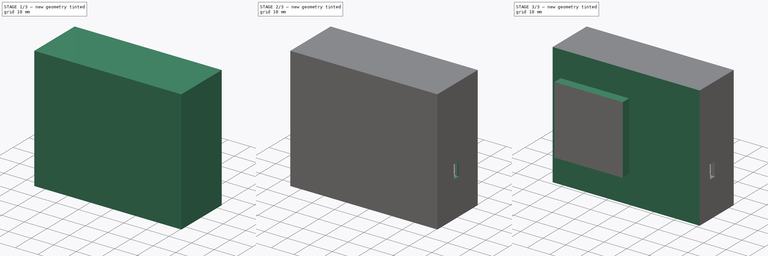
[diagram: build sequence overview — one tinted view per stage of 3, left to right]
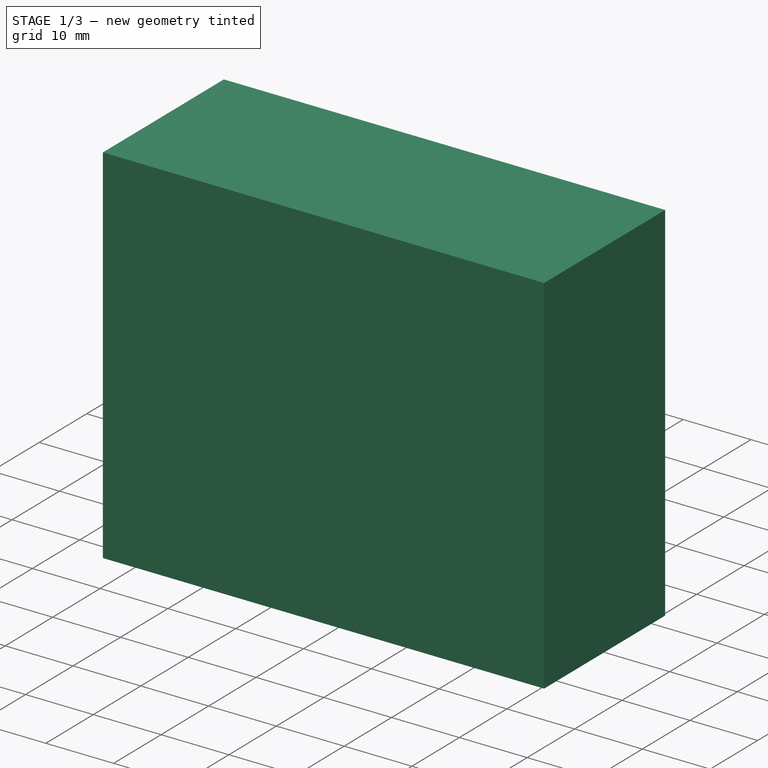
[diagram: stage 1 of 3 — iso view after this stage's code; geometry added in this stage tinted green]
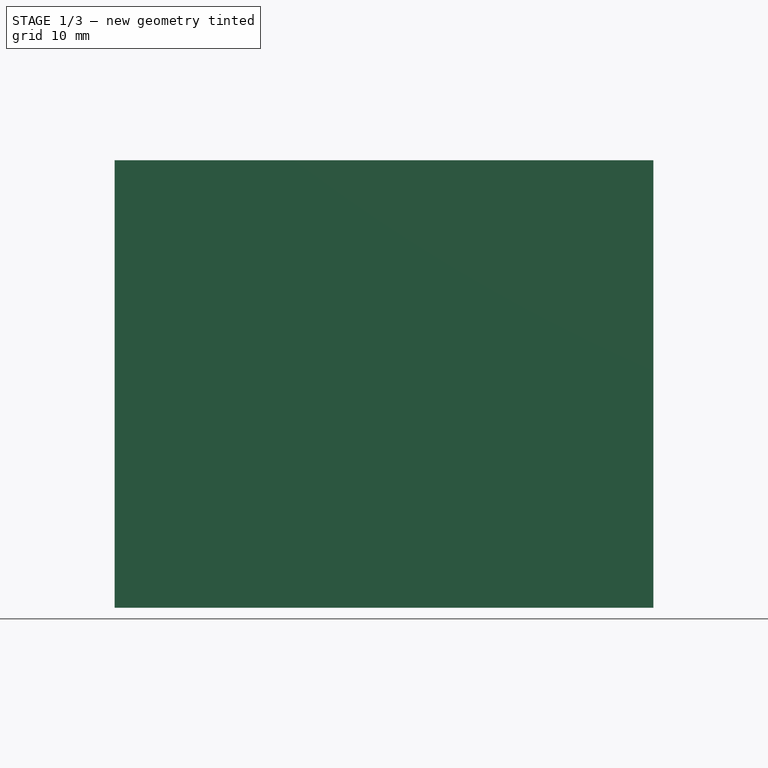
[diagram: stage 1 of 3 — front view after this stage's code; geometry added in this stage tinted green]
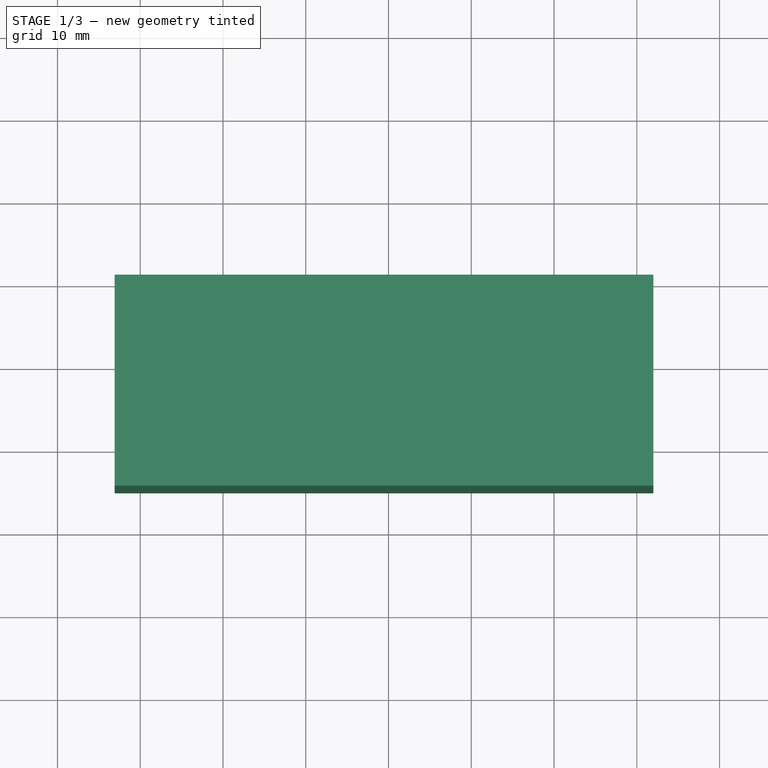
[diagram: stage 1 of 3 — top view after this stage's code; geometry added in this stage tinted green]
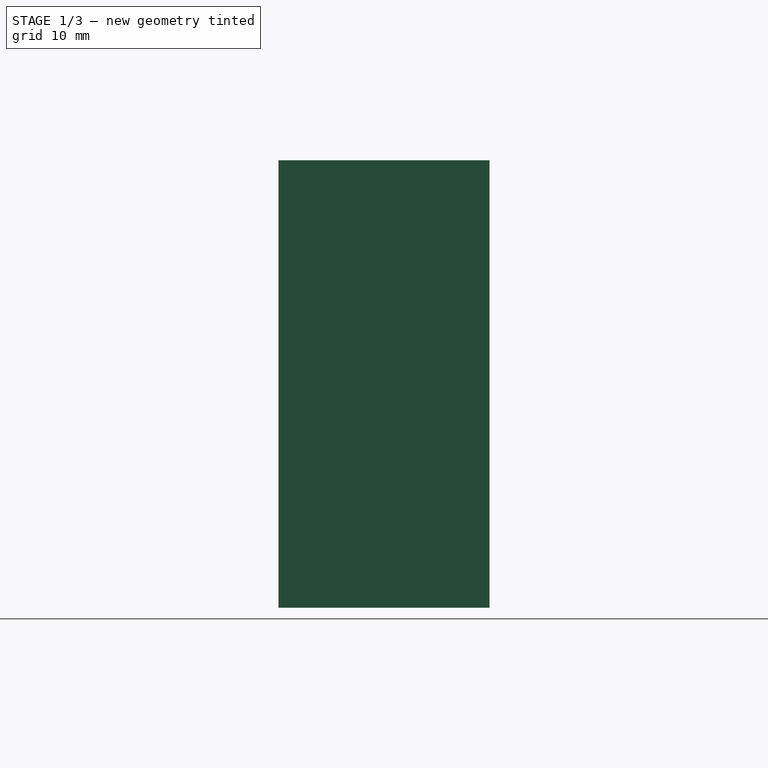
[diagram: stage 1 of 3 — right view after this stage's code; geometry added in this stage tinted green]
FCSTD DOCUMENT  (FreeCAD 0.18.1R)
Label: enclousure
License: All rights reserved
LicenseURL: http://en.wikipedia.org/wiki/All_rights_reserved
objects: Sketcher::SketchObject×3, PartDesign::Pocket×3, Part::Feature×1, PartDesign::FeatureBase×1, PartDesign::Fillet×1, PartDesign::Body×1
note: 13 computed .brp shape members not serialized (recipe doc carries the construction recipe); baked Part::Feature solids carry a one-line shape summary decoded from their .brp

FEATURE [Part::Feature] Part__Feature  label="Body"
  shape: bbox 65.1 x 25.5 x 54.08 mm, 185 faces (baked)
FEATURE [PartDesign::FeatureBase] Clone
  BaseFeature = -> Part__Feature
FEATURE [Sketcher::SketchObject] Sketch
  ExternalGeometry = -> [Clone]
  MapMode = 5
  Placement = pos=(0,10.5,-7e-15) rot=(0,0.707107,0.707107;3.14159rad)
  Support = -> [Clone]
  sketch-geometry (4):
    g0: LineSegment StartX=0 StartY=50.0814 StartZ=0 EndX=61.0961 EndY=50.0814 EndZ=0
    g1: LineSegment StartX=61.0961 StartY=50.0814 StartZ=0 EndX=61.0961 EndY=7.1e-15 EndZ=0
    g2: LineSegment StartX=61.0961 StartY=7.1e-15 StartZ=0 EndX=0 EndY=7.1e-15 EndZ=0
    g3: LineSegment StartX=0 StartY=7.1e-15 StartZ=0 EndX=0 EndY=50.0814 EndZ=0
  constraints (12):
    c: Coincident(g0,g1)
    c: Coincident(g1,g2)
    c: Coincident(g2,g3)
    c: Coincident(g3,g0)
    c: Horizontal(g0)
    c: Horizontal(g2)
    c: Vertical(g1)
    c: Vertical(g3)
    c: DistanceY(g0,g-6) = 2
    c: DistanceY(g-6,g1) = 2
    c: DistanceX(g1,g-6) = 2
    c: DistanceX(g-5,g2) = 2
FEATURE [PartDesign::Pocket] Pocket
  BaseFeature = -> Clone
  Length = 20
  Length2 = 100
  Profile = -> Sketch
  Type = 0
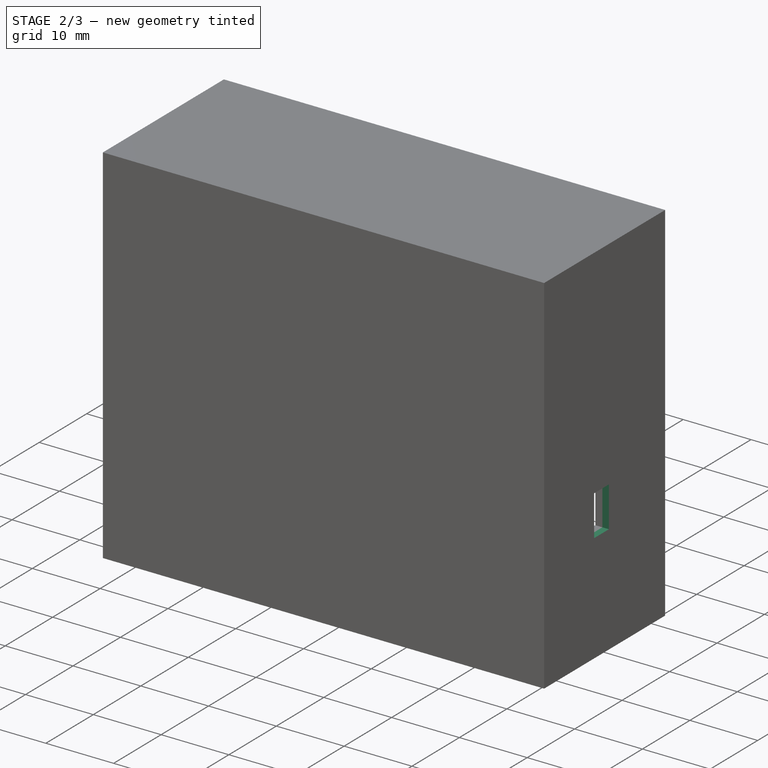
[diagram: stage 2 of 3 — iso view after this stage's code; geometry added in this stage tinted green]
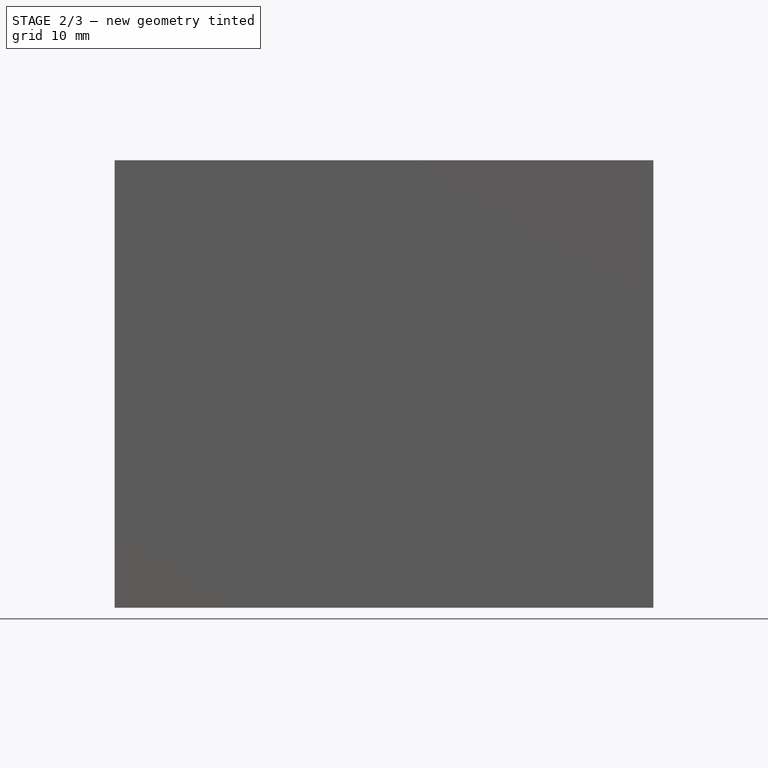
[diagram: stage 2 of 3 — front view after this stage's code; geometry added in this stage tinted green]
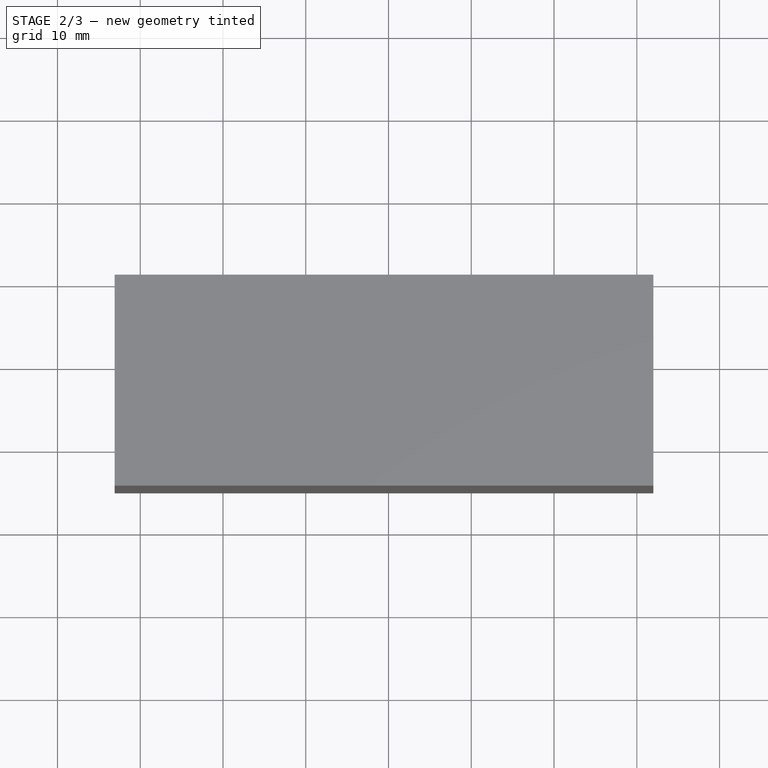
[diagram: stage 2 of 3 — top view after this stage's code; geometry added in this stage tinted green]
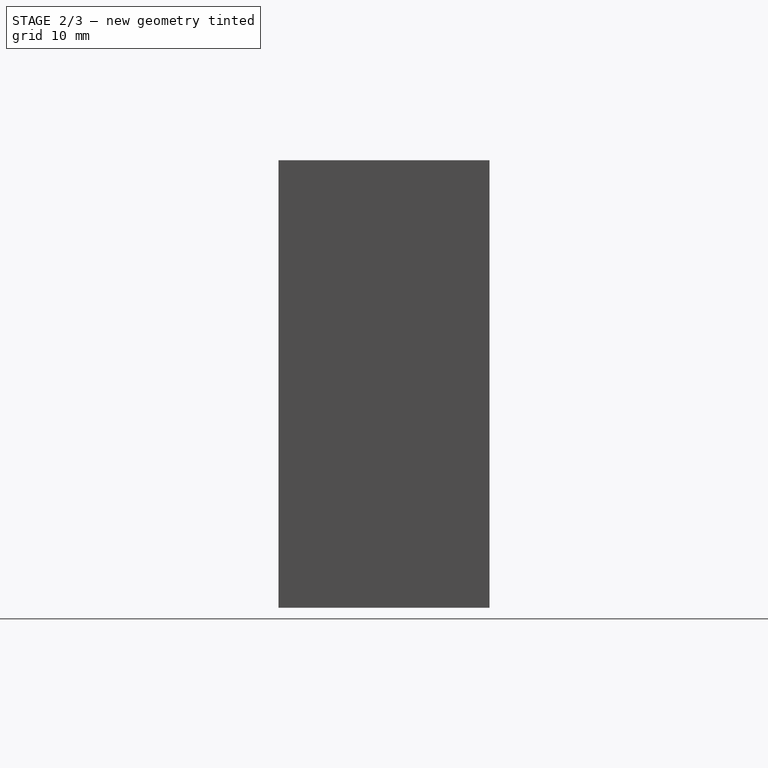
[diagram: stage 2 of 3 — right view after this stage's code; geometry added in this stage tinted green]
FEATURE [Sketcher::SketchObject] Sketch001
  ExternalGeometry = -> [Pocket]
  MapMode = 5
  Placement = pos=(1.3,0,0) rot=(0.57735,-0.57735,-0.57735;2.0944rad)
  Support = -> [Pocket]
  sketch-geometry (4):
    g0: LineSegment StartX=1.352 StartY=20.02 StartZ=0 EndX=4.472 EndY=20.02 EndZ=0
    g1: LineSegment StartX=4.472 StartY=20.02 StartZ=0 EndX=4.472 EndY=14.04 EndZ=0
    g2: LineSegment StartX=4.472 StartY=14.04 StartZ=0 EndX=1.352 EndY=14.04 EndZ=0
    g3: LineSegment StartX=1.352 StartY=14.04 StartZ=0 EndX=1.352 EndY=20.02 EndZ=0
  constraints (8):
    c: Coincident(g0,g1)
    c: Coincident(g1,g2)
    c: Coincident(g2,g3)
    c: Coincident(g3,g0)
    c: Horizontal(g0)
    c: Horizontal(g2)
    c: Vertical(g1)
    c: Vertical(g3)
FEATURE [PartDesign::Pocket] Pocket001
  BaseFeature = -> Pocket
  Length = 7
  Length2 = 5
  Profile = -> Sketch001
  Type = 4
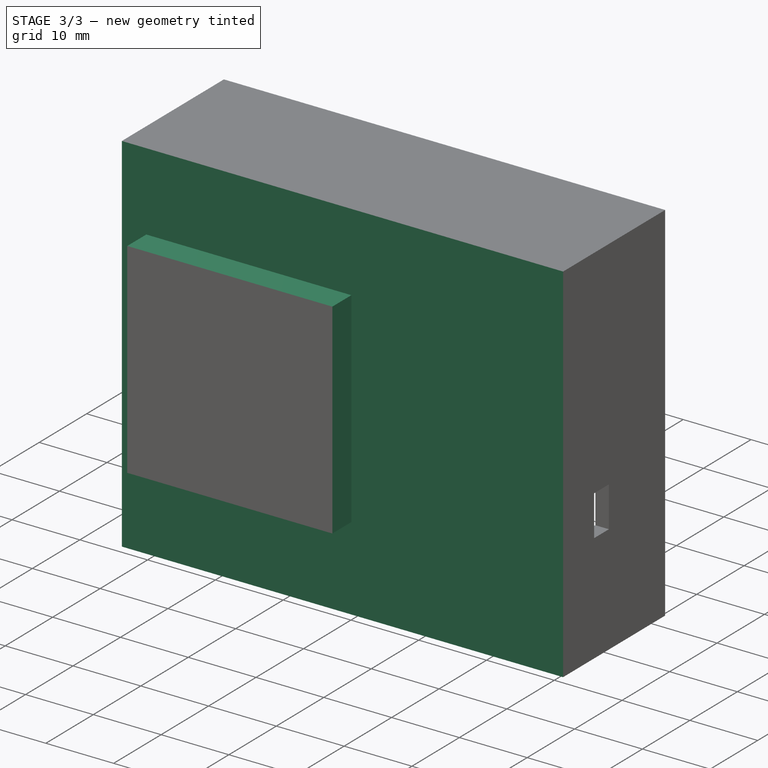
[diagram: stage 3 of 3 — iso view after this stage's code; geometry added in this stage tinted green]
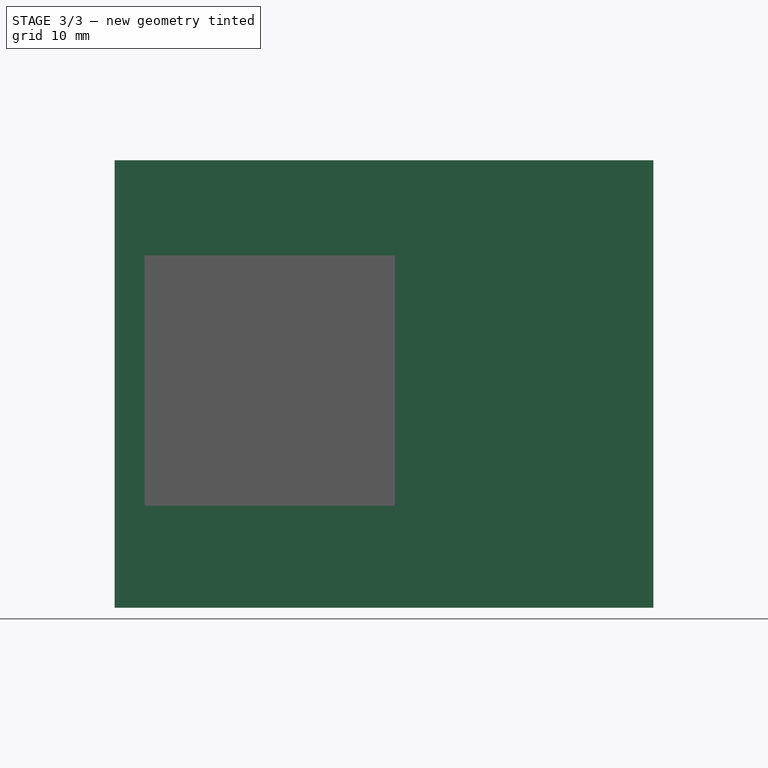
[diagram: stage 3 of 3 — front view after this stage's code; geometry added in this stage tinted green]
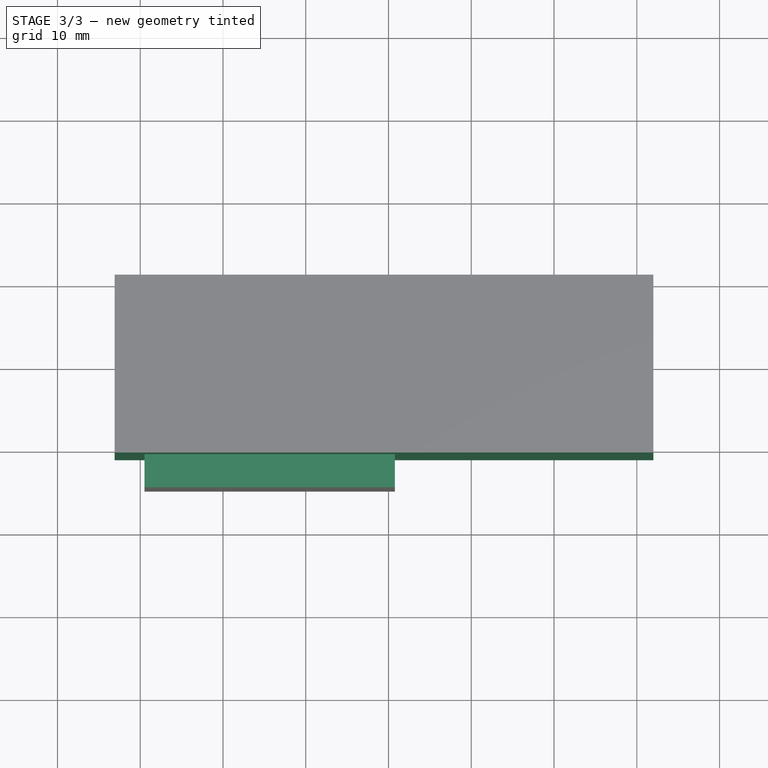
[diagram: stage 3 of 3 — top view after this stage's code; geometry added in this stage tinted green]
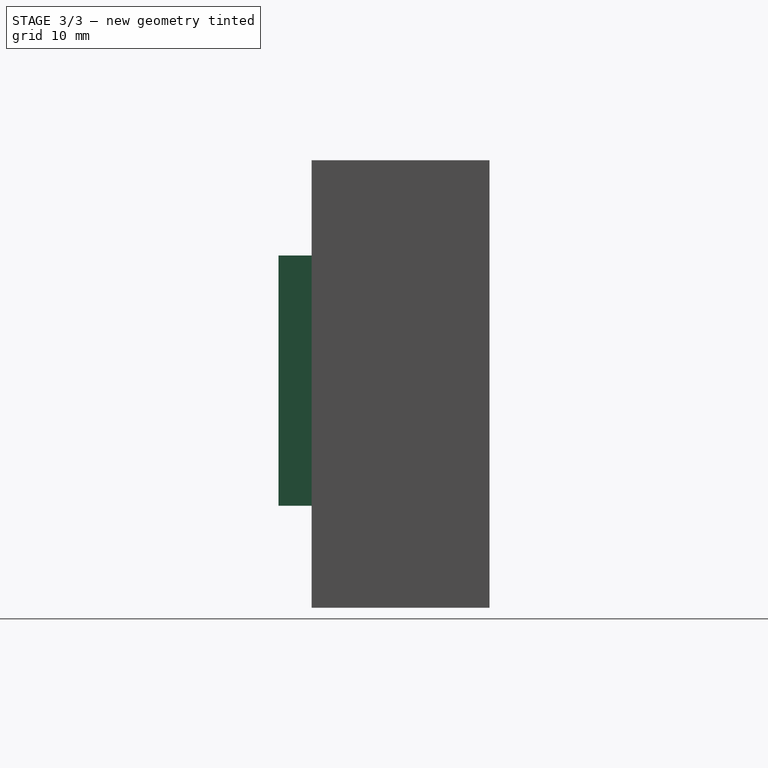
[diagram: stage 3 of 3 — right view after this stage's code; geometry added in this stage tinted green]
FEATURE [Sketcher::SketchObject] Sketch002
  ExternalGeometry = -> [Pocket001]
  MapMode = 5
  Placement = pos=(0,-15,1e-14) rot=(1,0,0;1.5708rad)
  Support = -> [Pocket001]
  sketch-geometry (8):
    g0: LineSegment StartX=-59.491 StartY=40.5761 StartZ=0 EndX=-29.241 EndY=40.5761 EndZ=0
    g1: LineSegment StartX=-29.241 StartY=40.5761 StartZ=0 EndX=-29.241 EndY=10.3261 EndZ=0
    g2: LineSegment StartX=-29.241 StartY=10.3261 StartZ=0 EndX=-59.491 EndY=10.3261 EndZ=0
    g3: LineSegment StartX=-59.491 StartY=10.3261 StartZ=0 EndX=-59.491 EndY=40.5761 EndZ=0
    g4: LineSegment StartX=-70.2575 StartY=57.5357 StartZ=0 EndX=6.27559 EndY=57.5357 EndZ=0
    g5: LineSegment StartX=6.27559 StartY=57.5357 StartZ=0 EndX=6.27559 EndY=-4.64054 EndZ=0
    g6: LineSegment StartX=6.27559 StartY=-4.64054 StartZ=0 EndX=-70.2575 EndY=-4.64054 EndZ=0
    g7: LineSegment StartX=-70.2575 StartY=-4.64054 StartZ=0 EndX=-70.2575 EndY=57.5357 EndZ=0
  constraints (20):
    c: Coincident(g0,g1)
    c: Coincident(g1,g2)
    c: Coincident(g2,g3)
    c: Coincident(g3,g0)
    c: Horizontal(g0)
    c: Horizontal(g2)
    c: Vertical(g1)
    c: Vertical(g3)
    c: Coincident(g4,g5)
    c: Coincident(g5,g6)
    c: Coincident(g6,g7)
    c: Coincident(g7,g4)
    c: Horizontal(g4)
    c: Horizontal(g6)
    c: Vertical(g5)
    c: Vertical(g7)
    c: DistanceX(g-6,g0) = 2
    c: DistanceX(g2,g-4) = 2
    c: DistanceY(g-3,g0) = 2
    c: DistanceY(g1,g-5) = 2
FEATURE [PartDesign::Pocket] Pocket002
  BaseFeature = -> Pocket001
  Length = 4
  Length2 = 100
  Profile = -> Sketch002
  Type = 0
FEATURE [PartDesign::Fillet] Fillet
  Base = -> Pocket002 [Face19]
  BaseFeature = -> Pocket002
  Radius = 1
FEATURE [PartDesign::Body] Body  label="Body001"
  Group = -> [Clone,Sketch,Pocket,Sketch001,Pocket001,Sketch002,Pocket002,Fillet]
  Origin = -> Origin
  Tip = -> Fillet
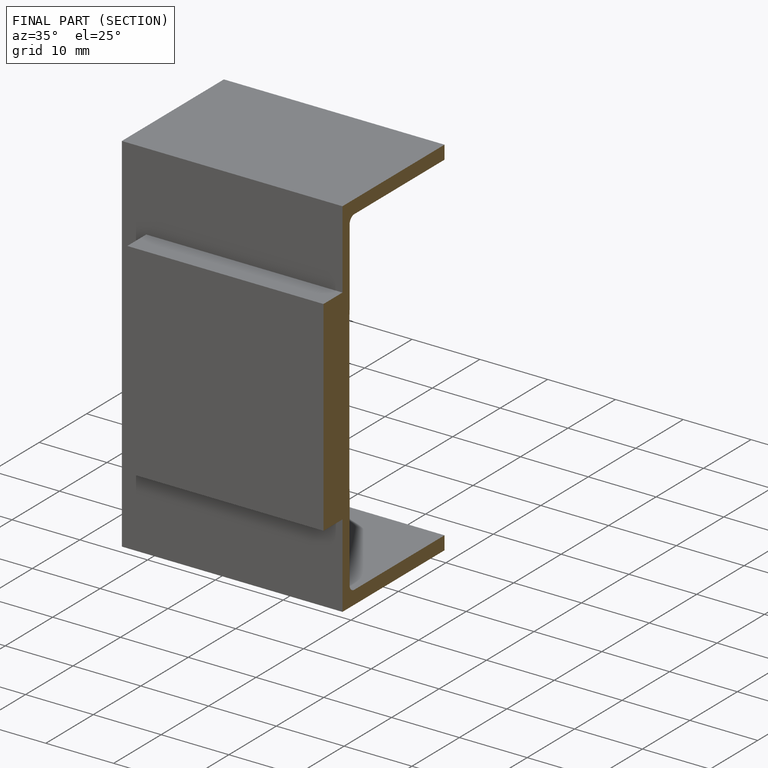
[diagram: finished part — half-section view (interior)]
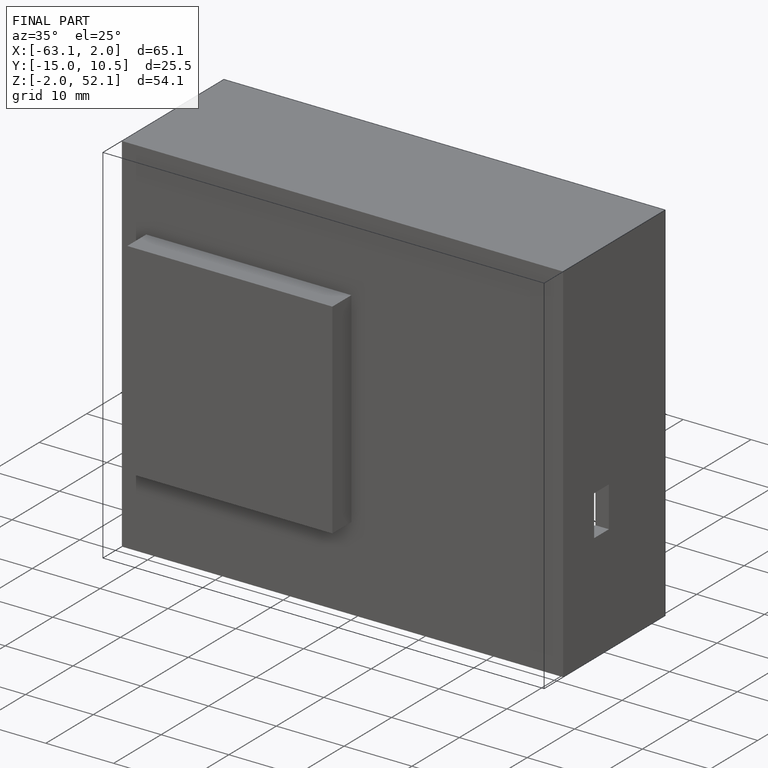
[diagram: finished part — iso view with bounding-box wireframe]
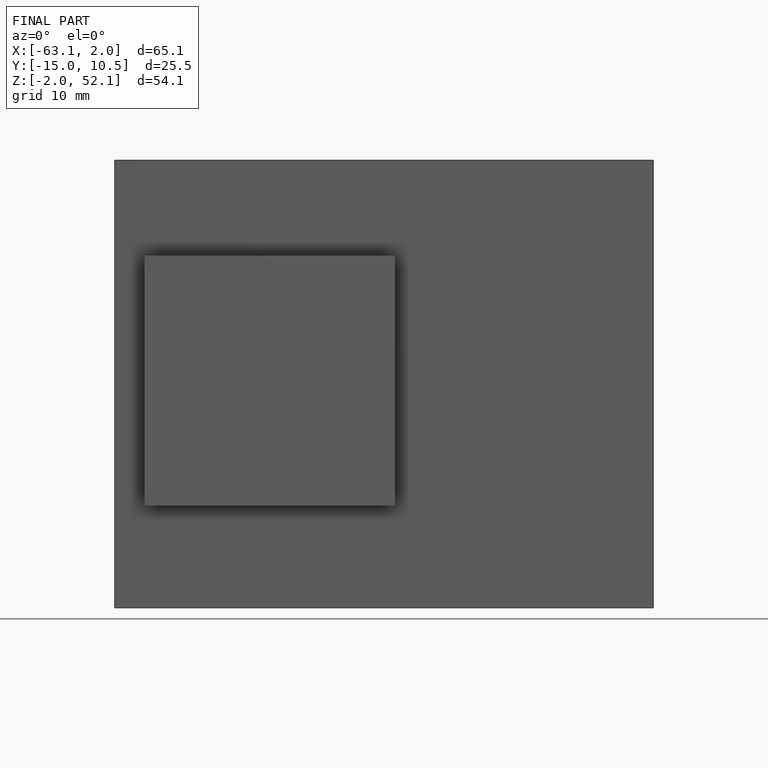
[diagram: finished part — front view with bounding-box wireframe]
